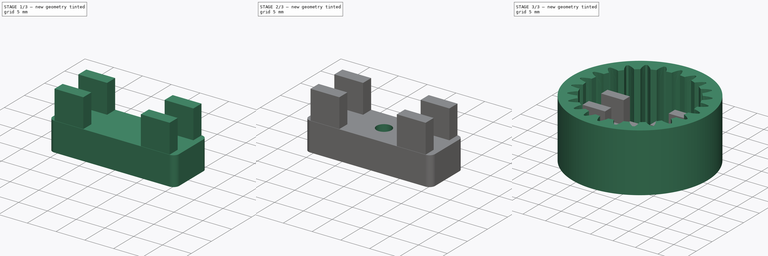
[diagram: build sequence overview — one tinted view per stage of 3, left to right]
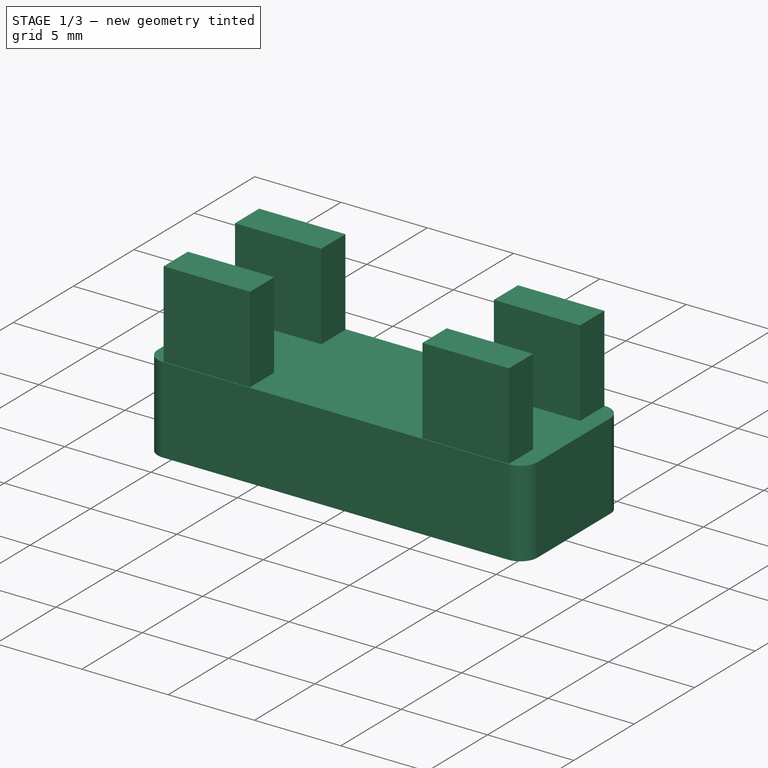
[diagram: stage 1 of 3 — iso view after this stage's code; geometry added in this stage tinted green]
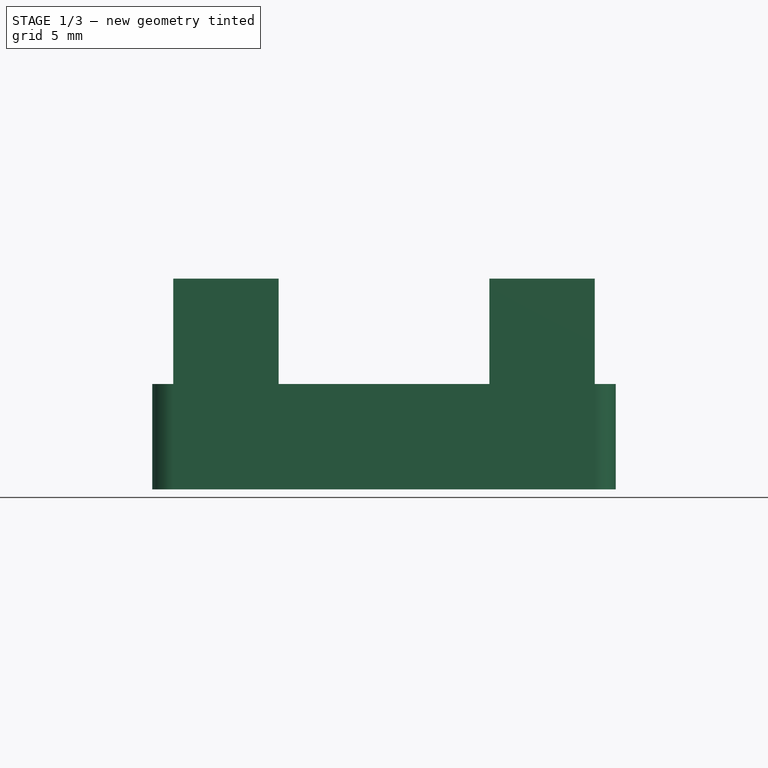
[diagram: stage 1 of 3 — front view after this stage's code; geometry added in this stage tinted green]
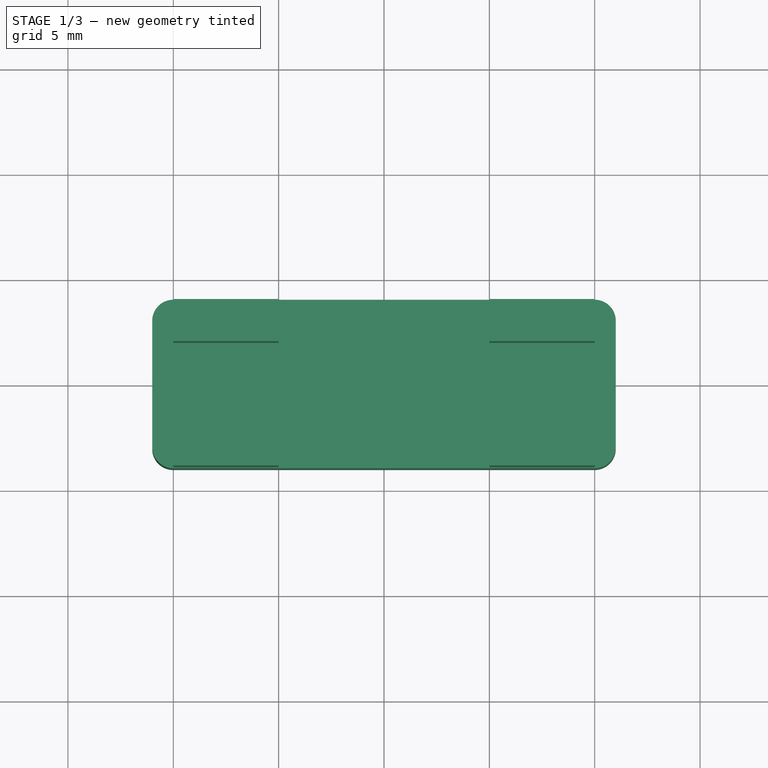
[diagram: stage 1 of 3 — top view after this stage's code; geometry added in this stage tinted green]
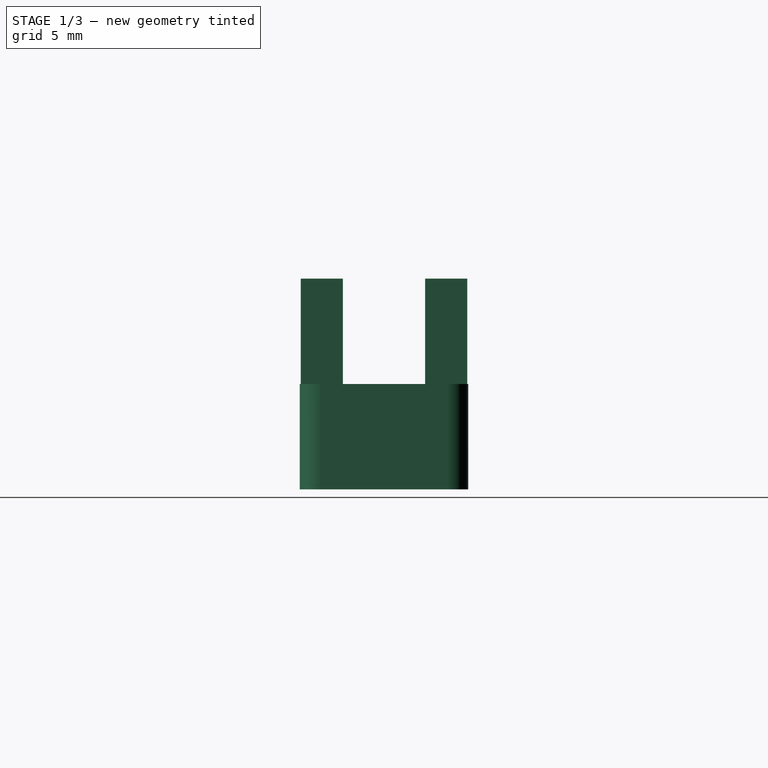
[diagram: stage 1 of 3 — right view after this stage's code; geometry added in this stage tinted green]
FCSTD DOCUMENT  (FreeCAD 1.0R39109 (Git))
Label: valve interface
License: All rights reserved
LicenseURL: http://en.wikipedia.org/wiki/All_rights_reserved
objects: Sketcher::SketchObject×4, PartDesign::Pad×2, PartDesign::Pocket×2, Part::FeaturePython×1, Part::Scale×1, PartDesign::Body×1, Part::MultiFuse×1
note: 24 computed .brp shape members not serialized (recipe doc carries the construction recipe); baked Part::Feature solids carry a one-line shape summary decoded from their .brp

FEATURE [Sketcher::SketchObject] Sketch  label="Model Base Sketch"
  ArcFitTolerance = 1e-06
  AttachmentSupport = -> [XY_Plane]
  FullyConstrained = true
  MakeInternals = false
  MapMode = 5
  sketch-geometry (16):
    g0: LineSegment StartX=-11 StartY=3 StartZ=0 EndX=-11 EndY=-3 EndZ=0
    g1: LineSegment StartX=-10 StartY=-4 StartZ=0 EndX=10 EndY=-4 EndZ=0
    g2: LineSegment StartX=11 StartY=-3 StartZ=0 EndX=11 EndY=3 EndZ=0
    g3: LineSegment StartX=10 StartY=4 StartZ=0 EndX=-10 EndY=4 EndZ=0
    g4: ArcOfCircle CenterX=-10 CenterY=3 CenterZ=0 NormalX=0 NormalY=0 NormalZ=1 AngleXU=0 Radius=1 StartAngle=1.5708 EndAngle=3.14159
    g5: ArcOfCircle CenterX=-10 CenterY=-3 CenterZ=0 NormalX=0 NormalY=0 NormalZ=1 AngleXU=0 Radius=1 StartAngle=3.14159 EndAngle=4.71239
    g6: ArcOfCircle CenterX=10 CenterY=-3 CenterZ=0 NormalX=0 NormalY=0 NormalZ=1 AngleXU=0 Radius=1 StartAngle=4.71239 EndAngle=6.28319
    g7: ArcOfCircle CenterX=10 CenterY=3 CenterZ=0 NormalX=0 NormalY=0 NormalZ=1 AngleXU=0 Radius=1 StartAngle=2e-16 EndAngle=1.5708
    g8: GeomPoint [constr] X=-11 Y=4 Z=0
    g9: GeomPoint [constr] X=11 Y=-4 Z=0
    g10: GeomPoint [constr] X=10 Y=0 Z=0
    g11: LineSegment [constr] StartX=10 StartY=0 StartZ=0 EndX=10 EndY=3 EndZ=0
    g12: LineSegment [constr] StartX=10 StartY=0 StartZ=0 EndX=10 EndY=-3 EndZ=0
    g13: GeomPoint [constr] X=0 Y=3 Z=0
    g14: LineSegment [constr] StartX=-10 StartY=3 StartZ=0 EndX=0 EndY=3 EndZ=0
    g15: LineSegment [constr] StartX=0 StartY=3 StartZ=0 EndX=10 EndY=3 EndZ=0
  constraints (36):
    c: Tangent(g0,g4) = -1.5708
    c: Tangent(g0,g5) = -1.5708
    c: Tangent(g1,g5) = -1.5708
    c: Tangent(g1,g6) = -1.5708
    c: Tangent(g2,g6) = -1.5708
    c: Tangent(g2,g7) = -1.5708
    c: Tangent(g3,g7) = -1.5708
    c: Tangent(g3,g4) = -1.5708
    c: Vertical(g0)
    c: Vertical(g2)
    c: Horizontal(g1)
    c: Horizontal(g3)
    c: Equal(g4,g5)
    c: Equal(g5,g6)
    c: Equal(g6,g7)
    c: PointOnObject(g8,g0)
    c: PointOnObject(g8,g3)
    c: PointOnObject(g9,g1)
    c: PointOnObject(g9,g2)
    c: DistanceX(g3,g3) = 20
    c: DistanceY(g2,g2) = 6
    c: Radius(g4) = 1
    c: Coincident(g11,g10)
    c: Coincident(g11,g7)
    c: Vertical(g11)
    c: Coincident(g12,g10)
    c: Coincident(g12,g6)
    c: Equal(g11,g12)
    c: PointOnObject(g10,g-1)
    c: Coincident(g14,g4)
    c: Coincident(g14,g13)
    c: Horizontal(g14)
    c: Coincident(g15,g13)
    c: Equal(g14,g15)
    c: PointOnObject(g13,g-2)
    c: Coincident(g15,g7)
FEATURE [PartDesign::Pad] Pad  label="Model Base Pad"
  Direction = (0,0,1)
  Length = 5
  Length2 = 10
  Profile = -> Sketch
  ReferenceAxis = -> Sketch [N_Axis]
  Suppressed = false
  Type = 0
FEATURE [Sketcher::SketchObject] Sketch001  label="Screw Hole Sketch"
  ArcFitTolerance = 1e-06
  AttachmentSupport = -> [XY_Plane]
  FullyConstrained = true
  MakeInternals = false
  MapMode = 5
  sketch-geometry (1):
    g0: Circle CenterX=0 CenterY=0 CenterZ=0 NormalX=0 NormalY=0 NormalZ=1 AngleXU=0 Radius=1.3
  constraints (2):
    c: Coincident(g0,g-1)
    c: Diameter(g0) = 2.6
FEATURE [Sketcher::SketchObject] Sketch002  label="Servo Pull Sketch"
  ArcFitTolerance = 1e-06
  AttachmentSupport = -> [XY_Plane]
  FullyConstrained = true
  MakeInternals = false
  MapMode = 5
  sketch-geometry (22):
    g0: LineSegment StartX=5 StartY=-1.95 StartZ=0 EndX=5 EndY=-3.95 EndZ=0
    g1: LineSegment StartX=5 StartY=-3.95 StartZ=0 EndX=10 EndY=-3.95 EndZ=0
    g2: LineSegment StartX=10 StartY=-3.95 StartZ=0 EndX=10 EndY=-1.95 EndZ=0
    g3: LineSegment StartX=10 StartY=-1.95 StartZ=0 EndX=5 EndY=-1.95 EndZ=0
    g4: LineSegment StartX=-5 StartY=1.95 StartZ=0 EndX=-5 EndY=3.95 EndZ=0
    g5: LineSegment StartX=-5 StartY=3.95 StartZ=0 EndX=-10 EndY=3.95 EndZ=0
    g6: LineSegment StartX=-10 StartY=3.95 StartZ=0 EndX=-10 EndY=1.95 EndZ=0
    g7: LineSegment StartX=-10 StartY=1.95 StartZ=0 EndX=-5 EndY=1.95 EndZ=0
    g8: LineSegment [constr] StartX=-5 StartY=1.95 StartZ=0 EndX=-5 EndY=0 EndZ=0
    g9: LineSegment [constr] StartX=5 StartY=-1.95 StartZ=0 EndX=5 EndY=0 EndZ=0
    g10: LineSegment [constr] StartX=-5 StartY=0 StartZ=0 EndX=0 EndY=0 EndZ=0
    g11: LineSegment [constr] StartX=0 StartY=0 StartZ=0 EndX=5 EndY=0 EndZ=0
    g12: LineSegment StartX=-10 StartY=-1.95 StartZ=0 EndX=-10 EndY=-3.95 EndZ=0
    g13: LineSegment StartX=-10 StartY=-3.95 StartZ=0 EndX=-5 EndY=-3.95 EndZ=0
    g14: LineSegment StartX=-5 StartY=-3.95 StartZ=0 EndX=-5 EndY=-1.95 EndZ=0
    g15: LineSegment StartX=-5 StartY=-1.95 StartZ=0 EndX=-10 EndY=-1.95 EndZ=0
    g16: LineSegment StartX=5 StartY=1.95 StartZ=0 EndX=10 EndY=1.95 EndZ=0
    g17: LineSegment StartX=10 StartY=1.95 StartZ=0 EndX=10 EndY=3.95 EndZ=0
    g18: LineSegment StartX=10 StartY=3.95 StartZ=0 EndX=5 EndY=3.95 EndZ=0
    g19: LineSegment StartX=5 StartY=3.95 StartZ=0 EndX=5 EndY=1.95 EndZ=0
    g20: LineSegment [constr] StartX=-5 StartY=-1.95 StartZ=0 EndX=-5 EndY=0 EndZ=0
    g21: LineSegment [constr] StartX=5 StartY=0 StartZ=0 EndX=5 EndY=1.95 EndZ=0
  constraints (62):
    c: Coincident(g0,g1)
    c: Coincident(g1,g2)
    c: Coincident(g2,g3)
    c: Coincident(g3,g0)
    c: Vertical(g0)
    c: Vertical(g2)
    c: Horizontal(g1)
    c: Horizontal(g3)
    c: Coincident(g4,g5)
    c: Coincident(g5,g6)
    c: Coincident(g6,g7)
    c: Coincident(g7,g4)
    c: Vertical(g4)
    c: Vertical(g6)
    c: Horizontal(g5)
    c: Horizontal(g7)
    c: Coincident(g8,g4)
    c: PointOnObject(g8,g-1)
    c: Vertical(g8)
    c: Coincident(g9,g0)
    c: PointOnObject(g9,g-1)
    c: Vertical(g9)
    c: Equal(g9,g8)
    c: Equal(g5,g3)
    c: Coincident(g10,g8)
    c: Coincident(g10,g-1)
    c: Coincident(g11,g-1)
    c: Coincident(g11,g9)
    c: Equal(g10,g11)
    c: DistanceY(g8,g8) = 1.95
    c: DistanceX(g5,g5) = 5
    c: Equal(g6,g0)
    c: DistanceY(g4,g4) = 2
    c: DistanceX(g10,g10) = 5
    c: Coincident(g12,g13)
    c: Coincident(g13,g14)
    c: Coincident(g14,g15)
    c: Coincident(g15,g12)
    c: Vertical(g12)
    c: Vertical(g14)
    c: Horizontal(g13)
    c: Horizontal(g15)
    c: Coincident(g16,g17)
    c: Coincident(g17,g18)
    c: Coincident(g18,g19)
    c: Coincident(g19,g16)
    c: Horizontal(g16)
    c: Horizontal(g18)
    c: Vertical(g17)
    c: Vertical(g19)
    c: Equal(g19,g4)
    c: Equal(g18,g5)
    c: Equal(g15,g5)
    c: Equal(g6,g12)
    c: Coincident(g20,g14)
    c: Coincident(g20,g8)
    c: Coincident(g21,g9)
    c: Coincident(g21,g16)
    c: Vertical(g21)
    c: Vertical(g20)
    c: Equal(g20,g21)
    c: Equal(g9,g21)
FEATURE [PartDesign::Pad] Pad001  label="Servo Pull Pad"
  BaseFeature = -> Pad
  Direction = (0,0,1)
  Length = 10
  Length2 = 10
  Profile = -> Sketch002
  ReferenceAxis = -> Sketch002 [N_Axis]
  Suppressed = false
  Type = 0
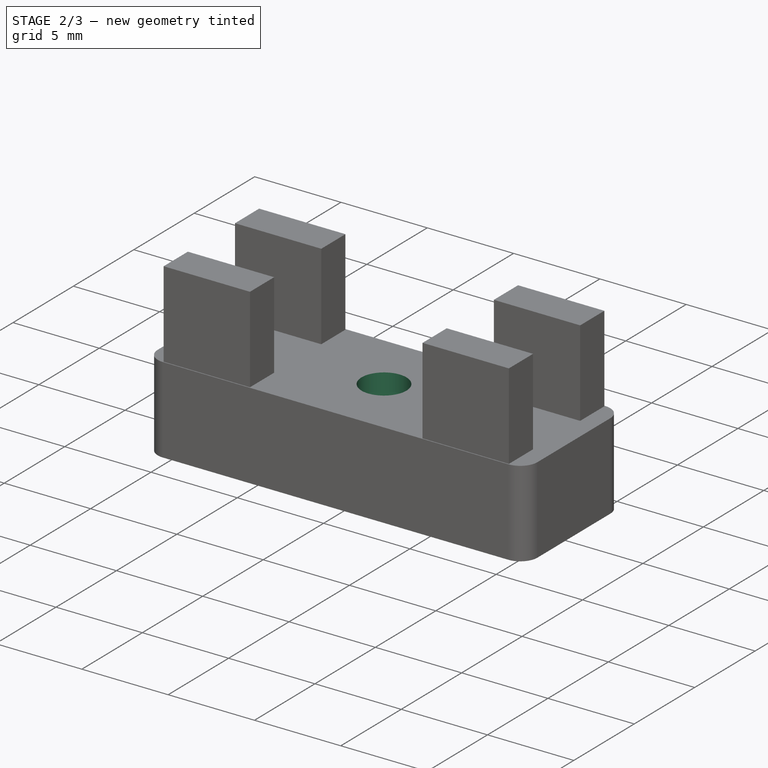
[diagram: stage 2 of 3 — iso view after this stage's code; geometry added in this stage tinted green]
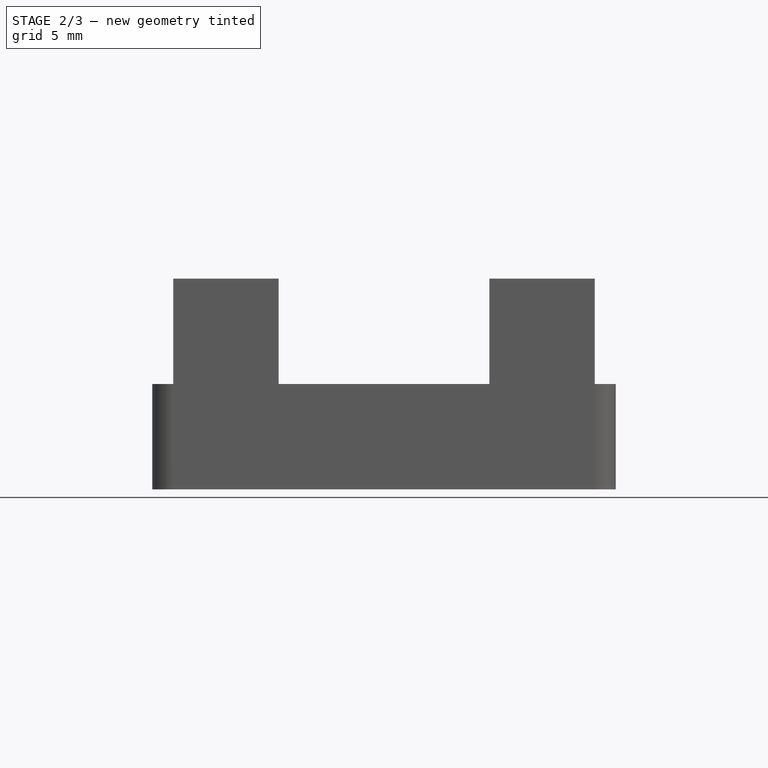
[diagram: stage 2 of 3 — front view after this stage's code; geometry added in this stage tinted green]
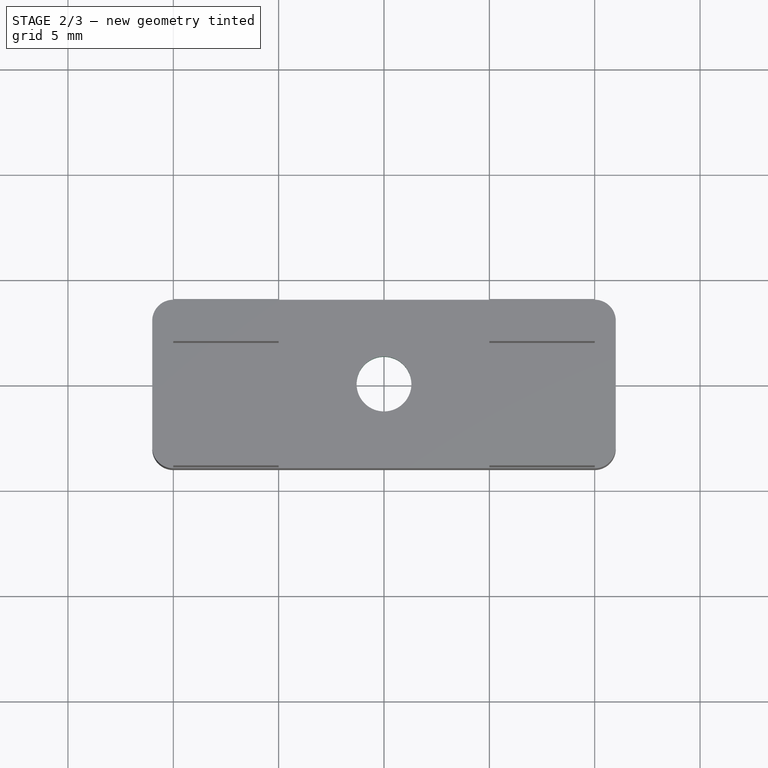
[diagram: stage 2 of 3 — top view after this stage's code; geometry added in this stage tinted green]
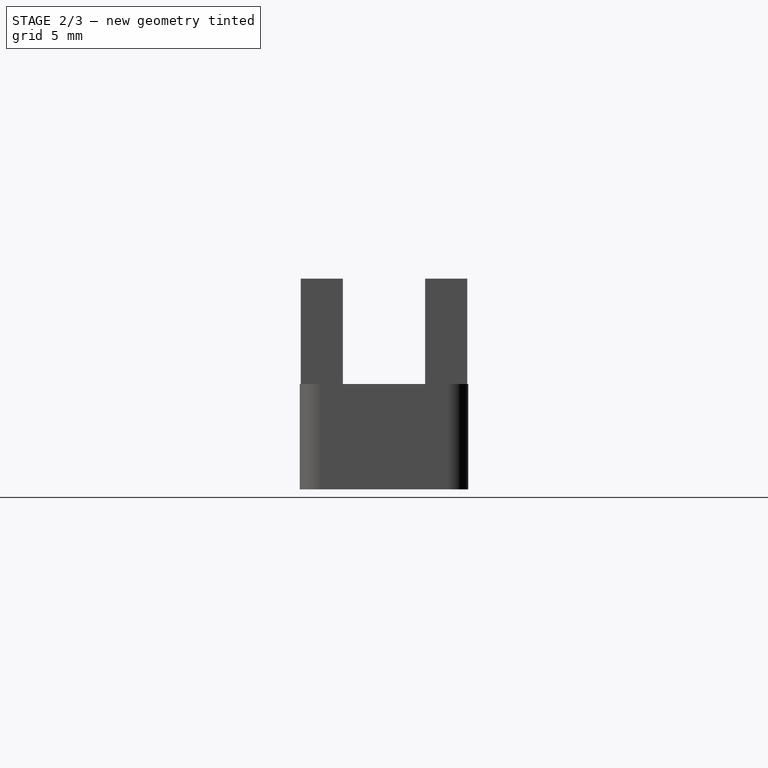
[diagram: stage 2 of 3 — right view after this stage's code; geometry added in this stage tinted green]
FEATURE [Part::Scale] Scale
  Base = -> InternalInvoluteGear
  Uniform = true
  UniformScale = 0.23
  XScale = 1
  YScale = 1
  ZScale = 1
FEATURE [PartDesign::Pocket] Pocket  label="Screw Hole Pocket"
  BaseFeature = -> Pad001
  Direction = (0,0,-1)
  Length = 8
  Length2 = 5
  Profile = -> Sketch001
  ReferenceAxis = -> Sketch001 [N_Axis]
  Reversed = true
  Suppressed = false
  Type = 1
FEATURE [Sketcher::SketchObject] Sketch003  label="Gear Hole Sketch"
  ArcFitTolerance = 1e-06
  AttachmentSupport = -> [XY_Plane]
  FullyConstrained = true
  MakeInternals = false
  MapMode = 5
  sketch-geometry (1):
    g0: Circle CenterX=0 CenterY=0 CenterZ=0 NormalX=0 NormalY=0 NormalZ=1 AngleXU=0 Radius=3.05
  constraints (2):
    c: Coincident(g0,g-1)
    c: Diameter(g0) = 6.1
FEATURE [PartDesign::Pocket] Pocket001  label="Gear Pocket"
  BaseFeature = -> Pocket
  Direction = (0,0,-1)
  Length = 4
  Length2 = 5
  Profile = -> Sketch003
  ReferenceAxis = -> Sketch003 [N_Axis]
  Reversed = true
  Suppressed = false
  Type = 0
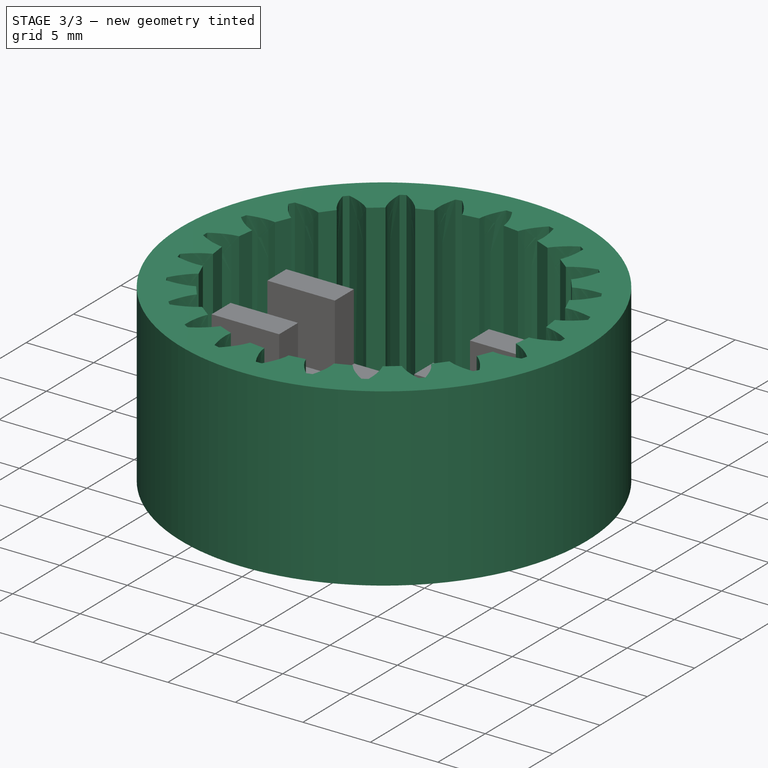
[diagram: stage 3 of 3 — iso view after this stage's code; geometry added in this stage tinted green]
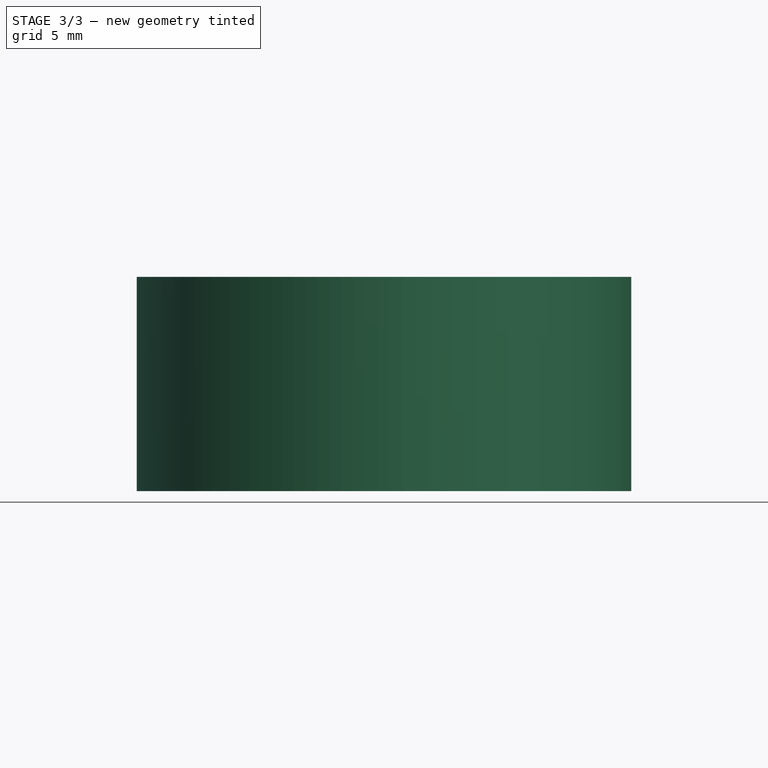
[diagram: stage 3 of 3 — front view after this stage's code; geometry added in this stage tinted green]
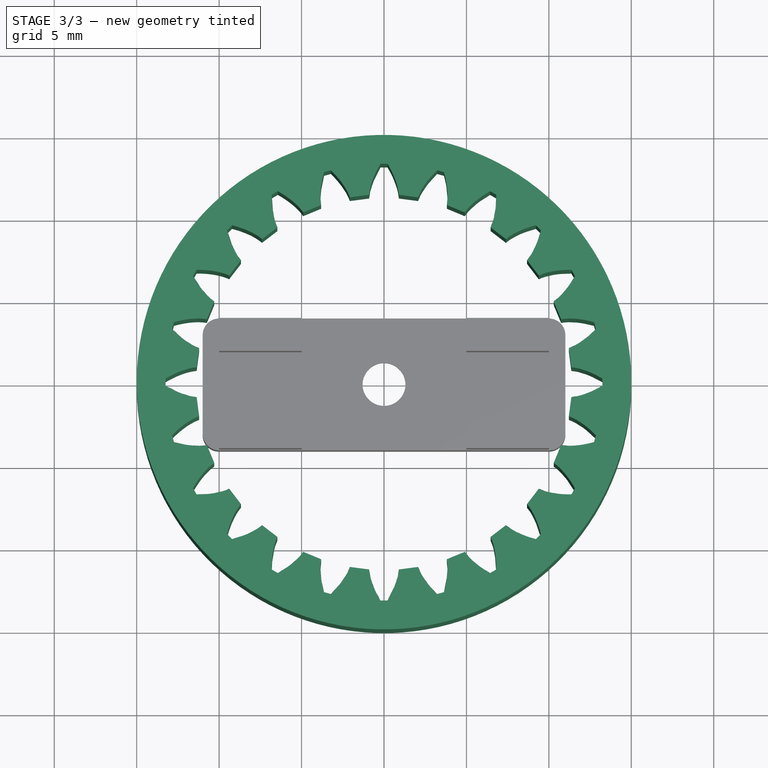
[diagram: stage 3 of 3 — top view after this stage's code; geometry added in this stage tinted green]
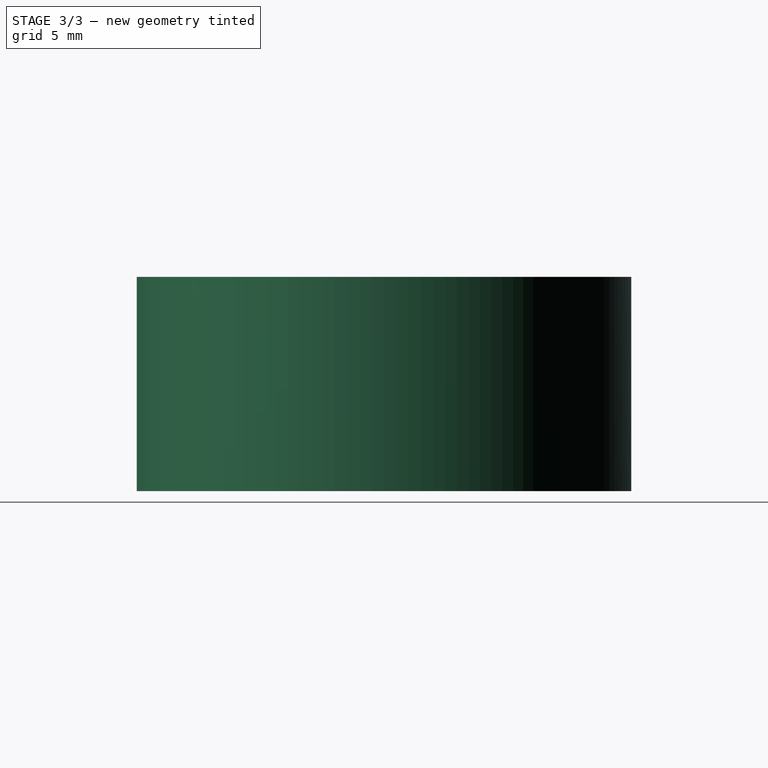
[diagram: stage 3 of 3 — right view after this stage's code; geometry added in this stage tinted green]
FEATURE [Part::FeaturePython] InternalInvoluteGear  # WARN: FeaturePython — macro-defined, semantics opaque (R4)
  AttacherType = Attacher::AttachEngine3D
  addendum_diameter = 22.8
  angular_backlash = 0
  backlash = 0
  clearance = 0.25
  double_helix = false
  head = -0.4
  head_fillet = 0
  height = 13
  helix_angle = 0
  module = 1
  num_teeth = 24
  numpoints = 6
  outside_diameter = 30
  pitch_diameter = 24
  pressure_angle = 20
  properties_from_tool = false
  reversed_backlash = false
  root_diameter = 26.5
  root_fillet = 0
  shift = 0
  simple = false
  thickness = 3
  transverse_pitch = 3.14159
  version = 1.3.0
  expr: angular_backlash = backlash / pitch_diameter * 360 ° / pi
FEATURE [PartDesign::Body] Body
  AllowCompound = false
  Group = -> [Sketch,Pad,Sketch001,Sketch002,Pad001,Pocket,Sketch003,Pocket001]
  Origin = -> Origin
  Tip = -> Pocket001
FEATURE [Part::MultiFuse] Fusion
  Shapes = -> [Scale,Body]
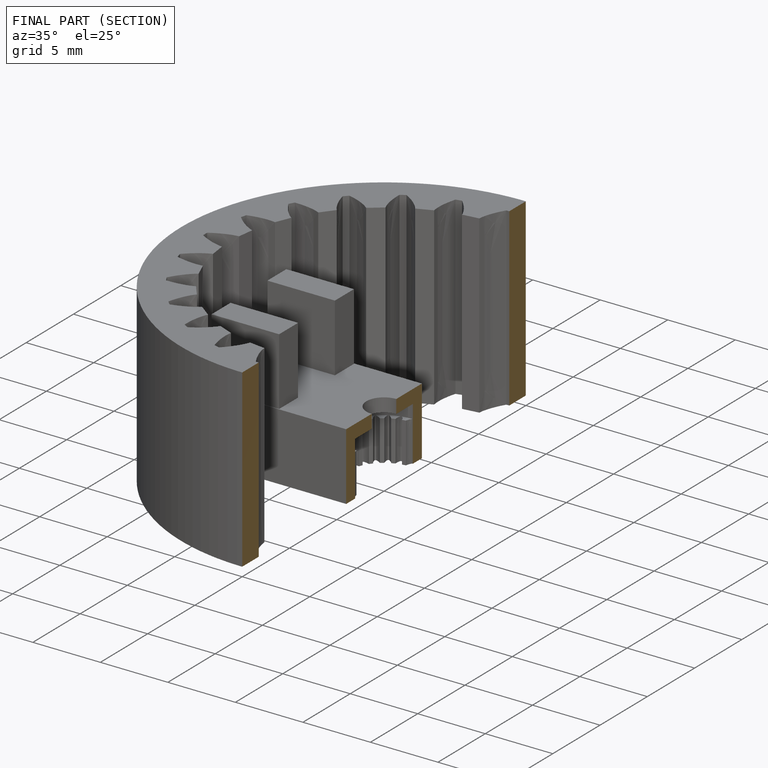
[diagram: finished part — half-section view (interior)]
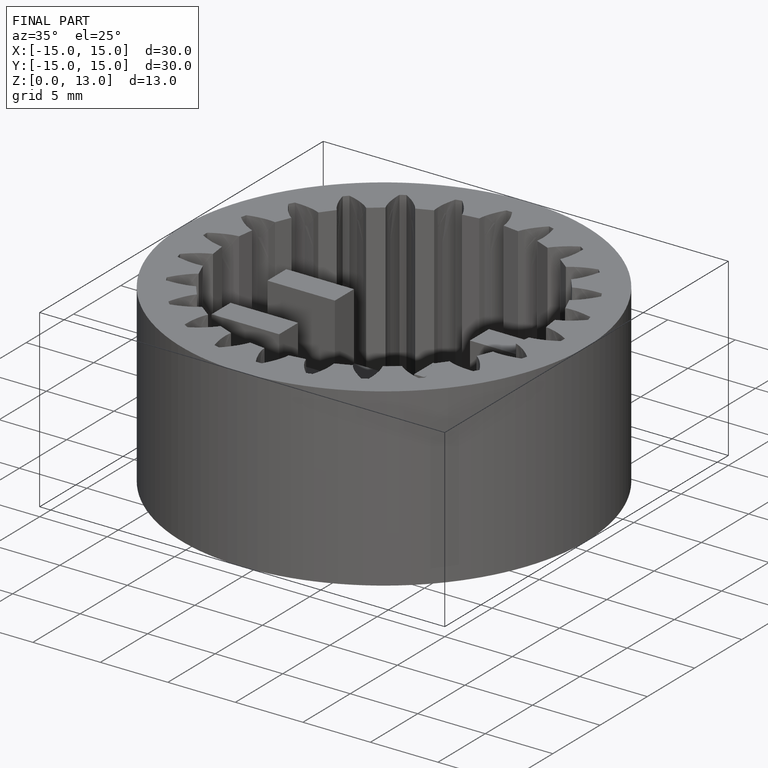
[diagram: finished part — iso view with bounding-box wireframe]
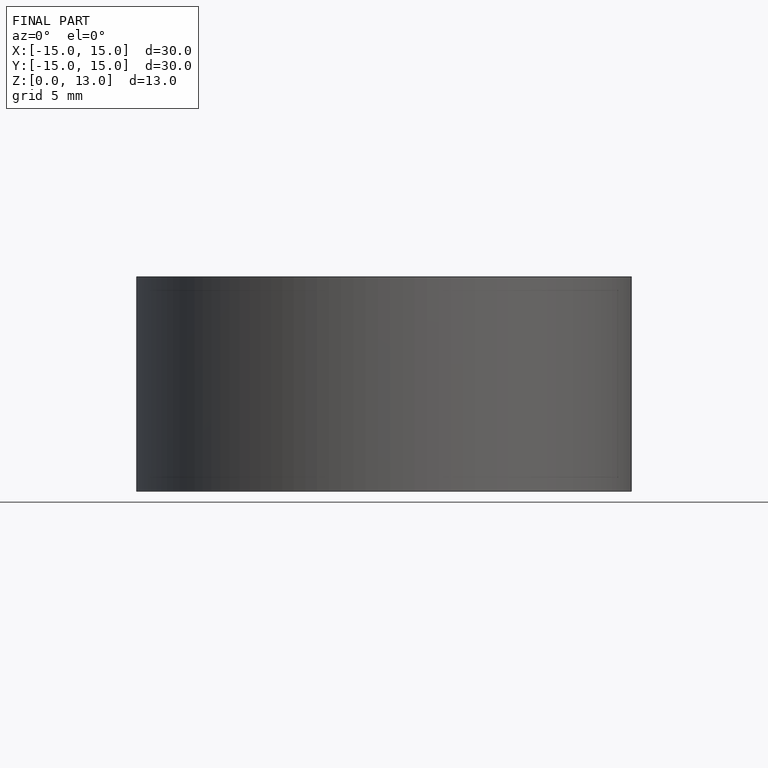
[diagram: finished part — front view with bounding-box wireframe]
